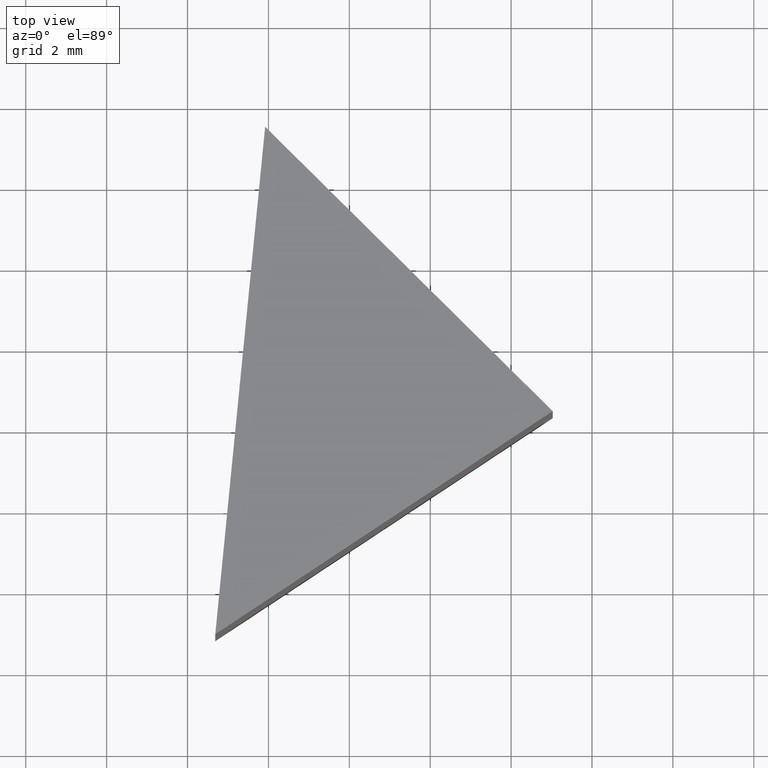
[diagram: clean part render]
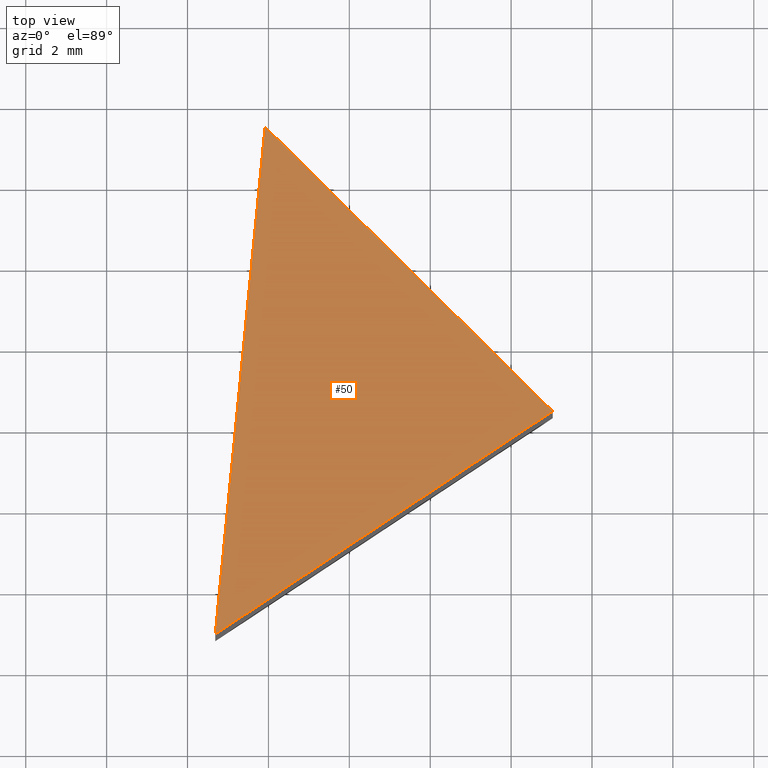
[diagram: same view with one face highlighted and labeled with its STEP entity id]
A machine part, top view. The second image highlights one B-rep face of the part: STEP entity #50.
In plain terms, the highlighted planar face has unit normal (0, 0, -1).
Its self-contained STEP definition (entity closure, byte-faithful):
#6 = CARTESIAN_POINT ( 'NONE',  ( 9.028570851696299500, 6.361486365058052400, 10.00000000000000000 ) ) ;
#7 = PLANE ( 'NONE',  #96 ) ;
#14 = LINE ( 'NONE', #162, #147 ) ;
#19 = ORIENTED_EDGE ( 'NONE', *, *, #163, .T. ) ;
#20 = EDGE_CURVE ( 'NONE', #137, #47, #28, .T. ) ;
#21 = DIRECTION ( 'NONE',  ( -1.000000000000000000, 0.0000000000000000000, 0.0000000000000000000 ) ) ;
#23 = DIRECTION ( 'NONE',  ( 0.8342399877260263700, 0.5514015260034012000, -0.0000000000000000000 ) ) ;
#26 = CARTESIAN_POINT ( 'NONE',  ( 9.028570851696299500, 6.361486365058052400, 10.00000000000000000 ) ) ;
#28 = LINE ( 'NONE', #118, #164 ) ;
#37 = VECTOR ( 'NONE', #23, 1000.000000000000000 ) ;
#47 = VERTEX_POINT ( 'NONE', #62 ) ;
#50 = ADVANCED_FACE ( 'NONE', ( #71 ), #7, .F. ) ;
#62 = CARTESIAN_POINT ( 'NONE',  ( 0.6861709744360347000, 0.8474711050240408800, 10.00000000000000000 ) ) ;
#71 = FACE_OUTER_BOUND ( 'NONE', #144, .T. ) ;
#76 = DIRECTION ( 'NONE',  ( -0.09777970958415410600, -0.9952080829623716200, -0.0000000000000000000 ) ) ;
#95 = ORIENTED_EDGE ( 'NONE', *, *, #20, .T. ) ;
#96 = AXIS2_PLACEMENT_3D ( 'NONE', #155, #100, #21 ) ;
#99 = EDGE_CURVE ( 'NONE', #47, #129, #132, .T. ) ;
#100 = DIRECTION ( 'NONE',  ( 0.0000000000000000000, 0.0000000000000000000, -1.000000000000000000 ) ) ;
#104 = CARTESIAN_POINT ( 'NONE',  ( 1.918842615621676000, 13.39368121511469800, 10.00000000000000000 ) ) ;
#118 = CARTESIAN_POINT ( 'NONE',  ( 0.6861709744360347000, 0.8474711050240408800, 10.00000000000000000 ) ) ;
#129 = VERTEX_POINT ( 'NONE', #26 ) ;
#132 = LINE ( 'NONE', #6, #37 ) ;
#137 = VERTEX_POINT ( 'NONE', #104 ) ;
#141 = DIRECTION ( 'NONE',  ( -0.7109728236074625000, 0.7032194850056645600, 0.0000000000000000000 ) ) ;
#144 = EDGE_LOOP ( 'NONE', ( #154, #19, #95 ) ) ;
#147 = VECTOR ( 'NONE', #141, 999.9999999999998900 ) ;
#154 = ORIENTED_EDGE ( 'NONE', *, *, #99, .T. ) ;
#155 = CARTESIAN_POINT ( 'NONE',  ( 0.0000000000000000000, 0.0000000000000000000, 10.00000000000000000 ) ) ;
#162 = CARTESIAN_POINT ( 'NONE',  ( 9.028570851696299500, 6.361486365058052400, 10.00000000000000000 ) ) ;
#163 = EDGE_CURVE ( 'NONE', #129, #137, #14, .T. ) ;
#164 = VECTOR ( 'NONE', #76, 999.9999999999998900 ) ;